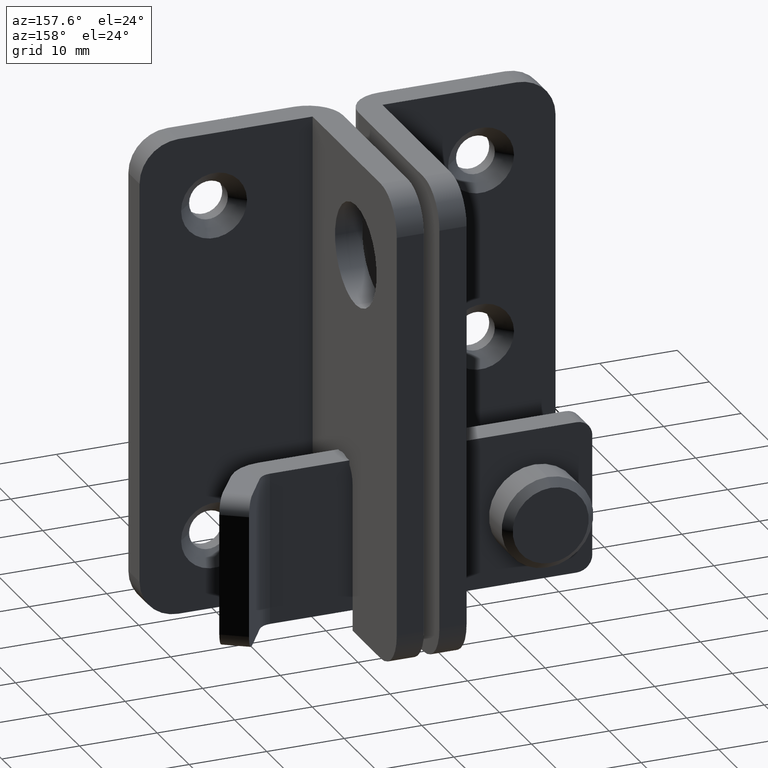
[diagram: clean part render]
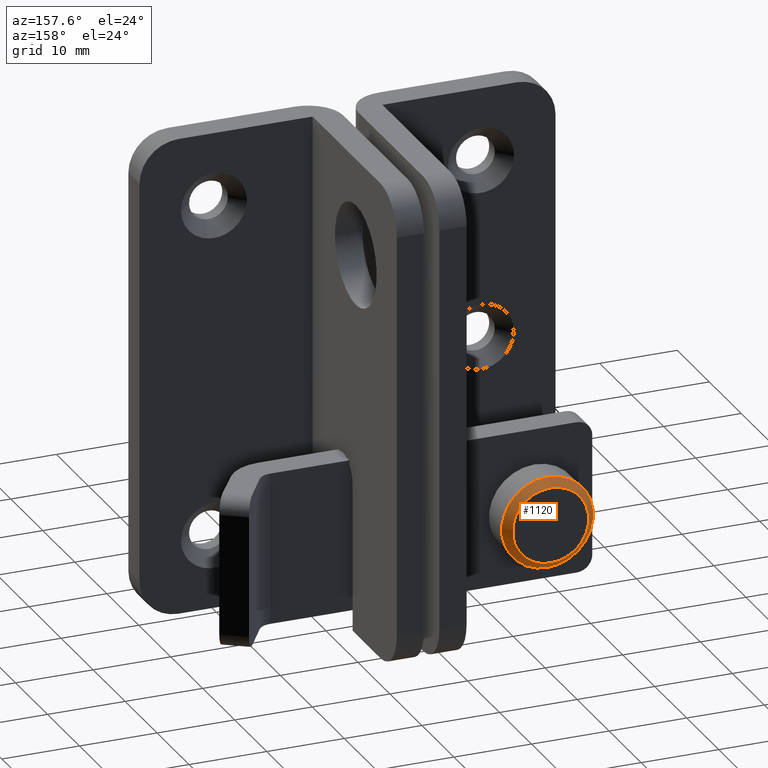
[diagram: same view with one face highlighted and labeled with its STEP entity id]
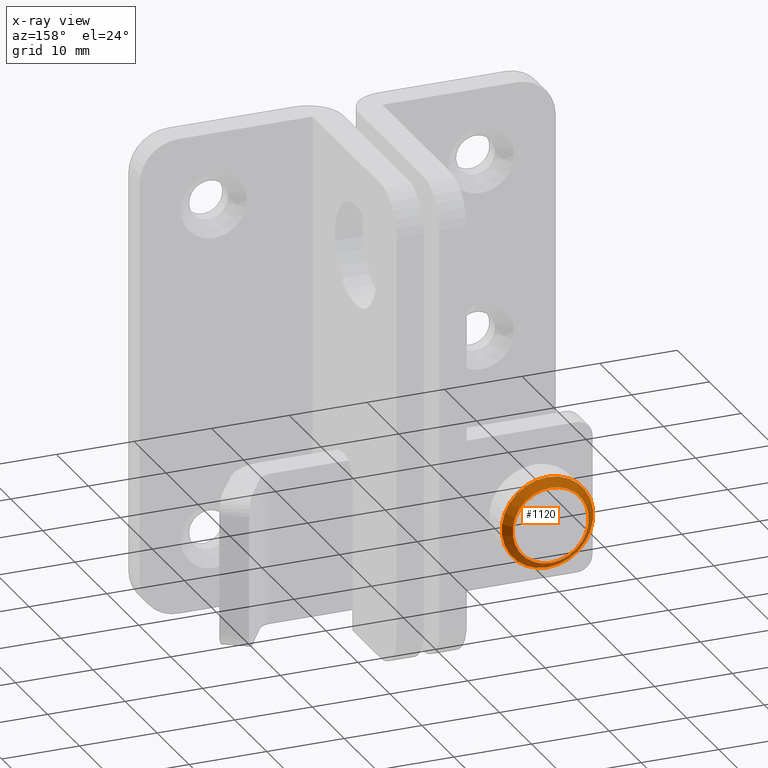
[diagram: x-ray of the same camera — body ghosted, the highlighted face saturated]
A machine part, auxiliary view. The second image highlights one B-rep face of the part: STEP entity #1120.
The next image is the same camera in x-ray: the body ghosted, the highlighted face saturated — about 0% of this face is hidden behind the body in this view.
In plain terms, the highlighted conical surface has half-angle 45 deg.
Its self-contained STEP definition (entity closure, byte-faithful):
#41=CONICAL_SURFACE('',#1203,5.4,44.9999999999999);
#51=FACE_BOUND('',#195,.T.);
#121=FACE_OUTER_BOUND('',#194,.T.);
#194=EDGE_LOOP('',(#815));
#195=EDGE_LOOP('',(#816));
#470=CIRCLE('',#1204,4.9);
#471=CIRCLE('',#1205,5.9);
#539=VERTEX_POINT('',#1740);
#540=VERTEX_POINT('',#1742);
#653=EDGE_CURVE('',#539,#539,#470,.T.);
#654=EDGE_CURVE('',#540,#540,#471,.T.);
#815=ORIENTED_EDGE('',*,*,#653,.T.);
#816=ORIENTED_EDGE('',*,*,#654,.T.);
#1120=ADVANCED_FACE('',(#121,#51),#41,.T.);
#1203=AXIS2_PLACEMENT_3D('',#1739,#1377,#1378);
#1204=AXIS2_PLACEMENT_3D('',#1741,#1379,#1380);
#1205=AXIS2_PLACEMENT_3D('',#1743,#1381,#1382);
#1377=DIRECTION('center_axis',(1.11022302462516E-15,-1.,0.));
#1378=DIRECTION('ref_axis',(0.,0.,-1.));
#1379=DIRECTION('center_axis',(7.9602041944578E-16,-1.,0.));
#1380=DIRECTION('ref_axis',(0.,0.,-1.));
#1381=DIRECTION('center_axis',(-7.9602041944578E-16,1.,0.));
#1382=DIRECTION('ref_axis',(0.,0.,-1.));
#1739=CARTESIAN_POINT('Origin',(7.99999999999998,20.9,-49.9));
#1740=CARTESIAN_POINT('',(7.99999999999998,21.4,-45.));
#1741=CARTESIAN_POINT('Origin',(7.99999999999998,21.4,-49.9));
#1742=CARTESIAN_POINT('',(7.99999999999998,20.4,-44.));
#1743=CARTESIAN_POINT('Origin',(7.99999999999998,20.4,-49.9));